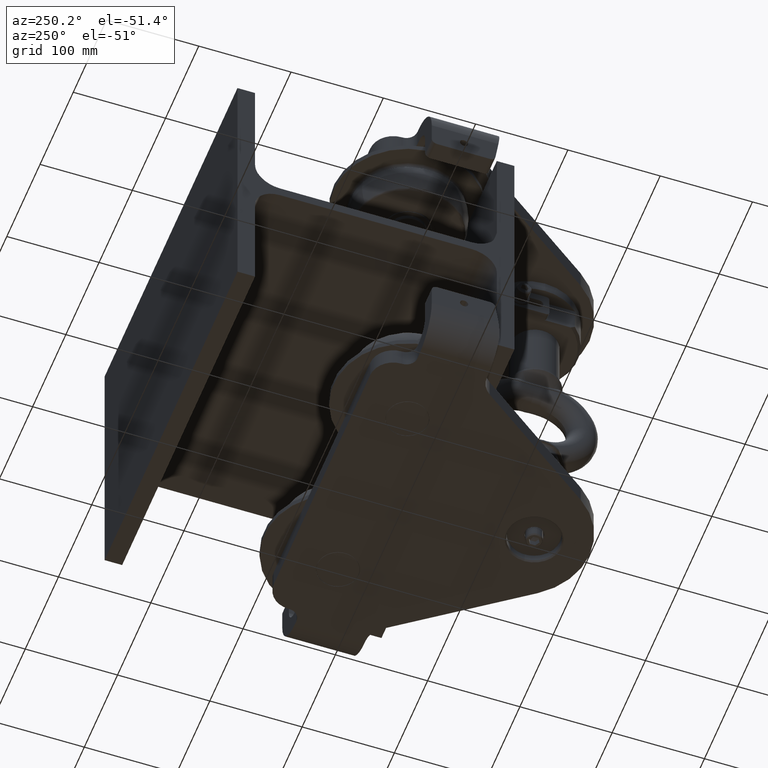
[diagram: clean part render]
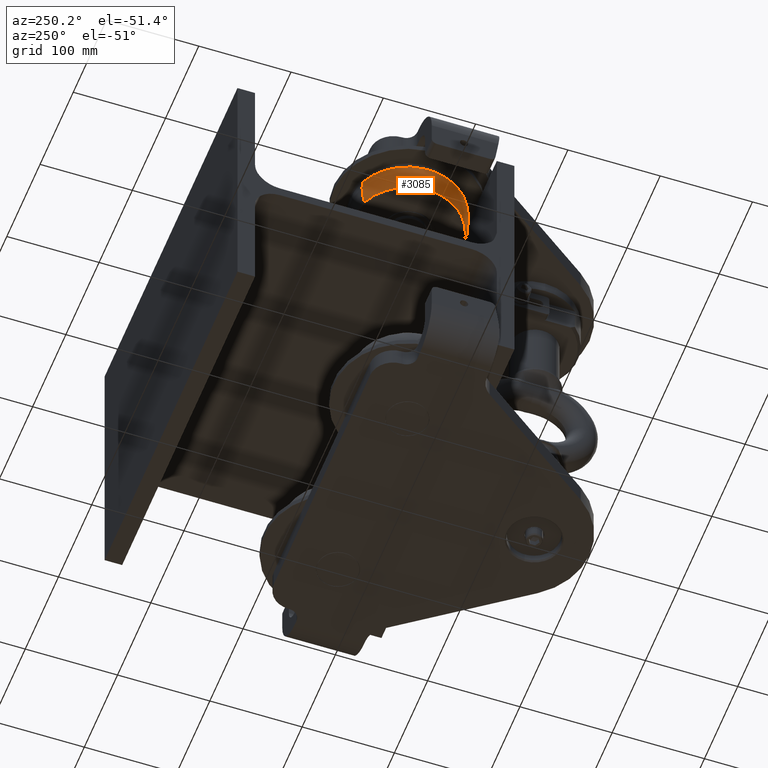
[diagram: same view with one face highlighted and labeled with its STEP entity id]
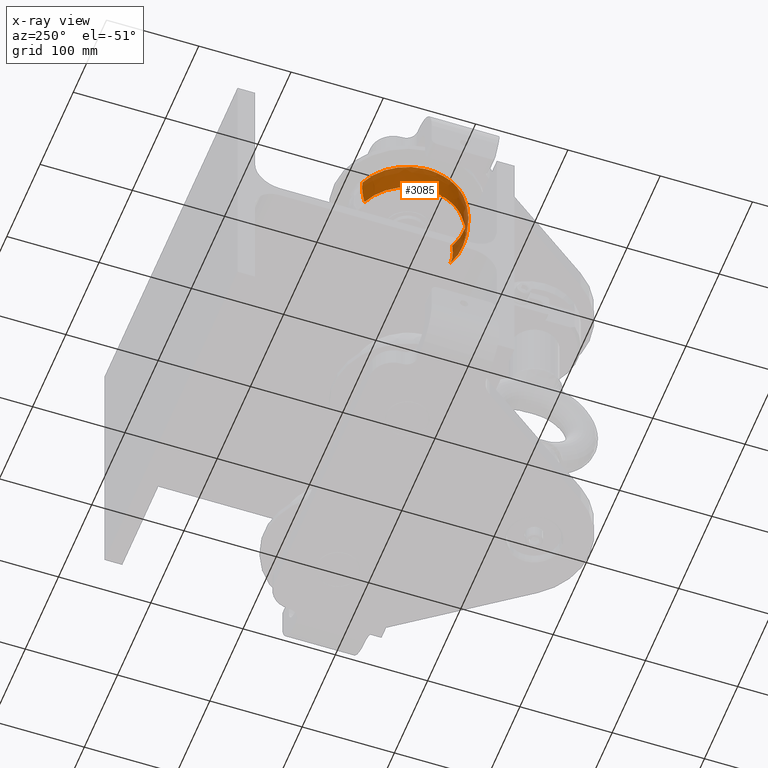
[diagram: x-ray of the same camera — body ghosted, the highlighted face saturated]
A machine part, auxiliary view. The second image highlights one B-rep face of the part: STEP entity #3085.
The next image is the same camera in x-ray: the body ghosted, the highlighted face saturated — about 6% of this face is hidden behind the body in this view.
In plain terms, the highlighted spherical surface has radius 62.5 mm.
Its self-contained STEP definition (entity closure, byte-faithful):
#36 = DIRECTION ( 'NONE',  ( -0.9237280213470680000, -0.3830490080632386600, -2.745377374247913200E-016 ) ) ;
#1050 = EDGE_CURVE ( 'NONE', #6098, #3685, #45891, .T. ) ;
#2200 = DIRECTION ( 'NONE',  ( -4.535348335754367300E-017, -6.073464467589028900E-016, 1.000000000000000000 ) ) ;
#2365 = DIRECTION ( 'NONE',  ( -0.3830490080632385500, 0.9237280213470678800, 4.440892098500627100E-016 ) ) ;
#2382 = CARTESIAN_POINT ( 'NONE',  ( -104.5000000000000300, -68.49999999999998600, 149.1861207576860100 ) ) ;
#2818 = VERTEX_POINT ( 'NONE', #24862 ) ;
#3085 = ADVANCED_FACE ( 'NONE', ( #16619 ), #50593, .T. ) ;
#3295 = CARTESIAN_POINT ( 'NONE',  ( -104.5000000000000300, -68.49999999999998600, 149.1861207576860100 ) ) ;
#3632 = CARTESIAN_POINT ( 'NONE',  ( -128.1204708428518000, -11.53890537330032400, 149.1861207576860400 ) ) ;
#3685 = VERTEX_POINT ( 'NONE', #23381 ) ;
#3852 = ORIENTED_EDGE ( 'NONE', *, *, #18481, .F. ) ;
#3873 = AXIS2_PLACEMENT_3D ( 'NONE', #39005, #30985, #43043 ) ;
#6098 = VERTEX_POINT ( 'NONE', #23436 ) ;
#6172 = CARTESIAN_POINT ( 'NONE',  ( -104.5000000000000300, -68.49999999999997200, 119.0420168067230000 ) ) ;
#6327 = CARTESIAN_POINT ( 'NONE',  ( -104.5000000000000300, -68.49999999999998600, 139.0000000000003100 ) ) ;
#6856 = ORIENTED_EDGE ( 'NONE', *, *, #1050, .T. ) ;
#9064 = EDGE_CURVE ( 'NONE', #3685, #2818, #15167, .T. ) ;
#10251 = AXIS2_PLACEMENT_3D ( 'NONE', #6327, #30812, #2365 ) ;
#12852 = AXIS2_PLACEMENT_3D ( 'NONE', #49085, #16873, #32815 ) ;
#12922 = CARTESIAN_POINT ( 'NONE',  ( -104.5000000000000300, -68.49999999999998600, 139.0000000000003100 ) ) ;
#13814 = AXIS2_PLACEMENT_3D ( 'NONE', #2382, #2200, #27410 ) ;
#15167 = CIRCLE ( 'NONE', #26644, 59.22777141558560700 ) ;
#16619 = FACE_OUTER_BOUND ( 'NONE', #43020, .T. ) ;
#16873 = DIRECTION ( 'NONE',  ( -4.535348335754367300E-017, -6.073464467589028900E-016, 1.000000000000000000 ) ) ;
#18450 = DIRECTION ( 'NONE',  ( 0.9237280213470677700, 0.3830490080632387200, 2.343121727548668200E-016 ) ) ;
#18481 = EDGE_CURVE ( 'NONE', #43491, #44065, #49585, .T. ) ;
#21902 = CIRCLE ( 'NONE', #3873, 62.49999999999999300 ) ;
#22235 = DIRECTION ( 'NONE',  ( -4.535348335754367300E-017, -6.073464467589028900E-016, 1.000000000000000000 ) ) ;
#22823 = ORIENTED_EDGE ( 'NONE', *, *, #9064, .T. ) ;
#23381 = CARTESIAN_POINT ( 'NONE',  ( -159.2103520985153300, -91.18713909053627700, 119.0420168067229800 ) ) ;
#23436 = CARTESIAN_POINT ( 'NONE',  ( -127.1871390905363100, -13.78964790148466300, 119.0420168067230300 ) ) ;
#24862 = CARTESIAN_POINT ( 'NONE',  ( -81.81286090946370800, -123.2103520985153000, 119.0420168067229700 ) ) ;
#25570 = AXIS2_PLACEMENT_3D ( 'NONE', #12922, #36, #49713 ) ;
#26644 = AXIS2_PLACEMENT_3D ( 'NONE', #6172, #22235, #18450 ) ;
#27410 = DIRECTION ( 'NONE',  ( 0.9237280213470678800, 0.3830490080632386100, 4.501072725655819800E-016 ) ) ;
#27797 = DIRECTION ( 'NONE',  ( 0.9237280213470678800, 0.3830490080632386100, 4.501072725655819800E-016 ) ) ;
#29064 = CARTESIAN_POINT ( 'NONE',  ( -80.87952915714824100, -125.4610946266996900, 149.1861207576859800 ) ) ;
#29070 = EDGE_CURVE ( 'NONE', #6098, #43491, #21902, .T. ) ;
#30031 = ORIENTED_EDGE ( 'NONE', *, *, #29070, .F. ) ;
#30812 = DIRECTION ( 'NONE',  ( -0.9237280213470678800, -0.3830490080632385500, -2.745377374247912700E-016 ) ) ;
#30985 = DIRECTION ( 'NONE',  ( 0.9237280213470677700, 0.3830490080632386600, 2.745377374247913200E-016 ) ) ;
#32815 = DIRECTION ( 'NONE',  ( 0.9237280213470677700, 0.3830490080632387200, 2.343121727548668200E-016 ) ) ;
#33534 = ORIENTED_EDGE ( 'NONE', *, *, #43424, .F. ) ;
#35214 = CIRCLE ( 'NONE', #25570, 62.50000000000001400 ) ;
#36301 = ORIENTED_EDGE ( 'NONE', *, *, #37743, .T. ) ;
#37743 = EDGE_CURVE ( 'NONE', #2818, #47233, #35214, .T. ) ;
#38074 = AXIS2_PLACEMENT_3D ( 'NONE', #3295, #52254, #27797 ) ;
#39005 = CARTESIAN_POINT ( 'NONE',  ( -104.5000000000000300, -68.49999999999998600, 139.0000000000003100 ) ) ;
#43020 = EDGE_LOOP ( 'NONE', ( #22823, #36301, #33534, #3852, #30031, #6856 ) ) ;
#43043 = DIRECTION ( 'NONE',  ( -0.3830490080632385500, 0.9237280213470678800, 0.0000000000000000000 ) ) ;
#43424 = EDGE_CURVE ( 'NONE', #44065, #47233, #47117, .T. ) ;
#43491 = VERTEX_POINT ( 'NONE', #3632 ) ;
#44065 = VERTEX_POINT ( 'NONE', #49658 ) ;
#45891 = CIRCLE ( 'NONE', #12852, 59.22777141558560700 ) ;
#47117 = CIRCLE ( 'NONE', #38074, 61.66435715962541100 ) ;
#47233 = VERTEX_POINT ( 'NONE', #29064 ) ;
#49085 = CARTESIAN_POINT ( 'NONE',  ( -104.5000000000000300, -68.49999999999997200, 119.0420168067230000 ) ) ;
#49585 = CIRCLE ( 'NONE', #13814, 61.66435715962541100 ) ;
#49658 = CARTESIAN_POINT ( 'NONE',  ( -161.4610946266996600, -92.12047084285177300, 149.1861207576860100 ) ) ;
#49713 = DIRECTION ( 'NONE',  ( 0.3830490080632386100, -0.9237280213470677700, 0.0000000000000000000 ) ) ;
#50593 = SPHERICAL_SURFACE ( 'NONE', #10251, 62.50000000000000000 ) ;
#52254 = DIRECTION ( 'NONE',  ( -4.535348335754367300E-017, -6.073464467589028900E-016, 1.000000000000000000 ) ) ;